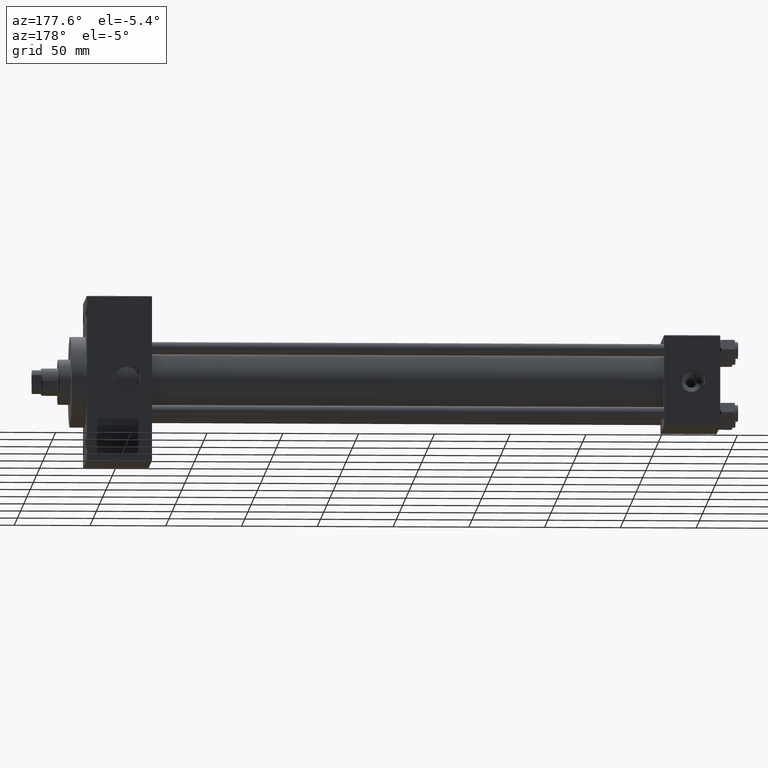
[diagram: clean part render]
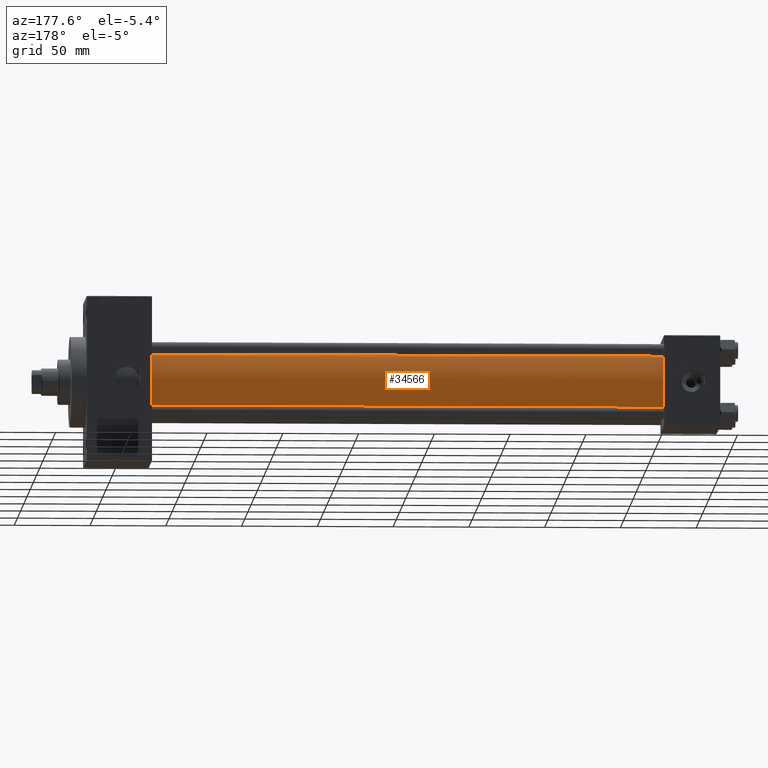
[diagram: same view with one face highlighted and labeled with its STEP entity id]
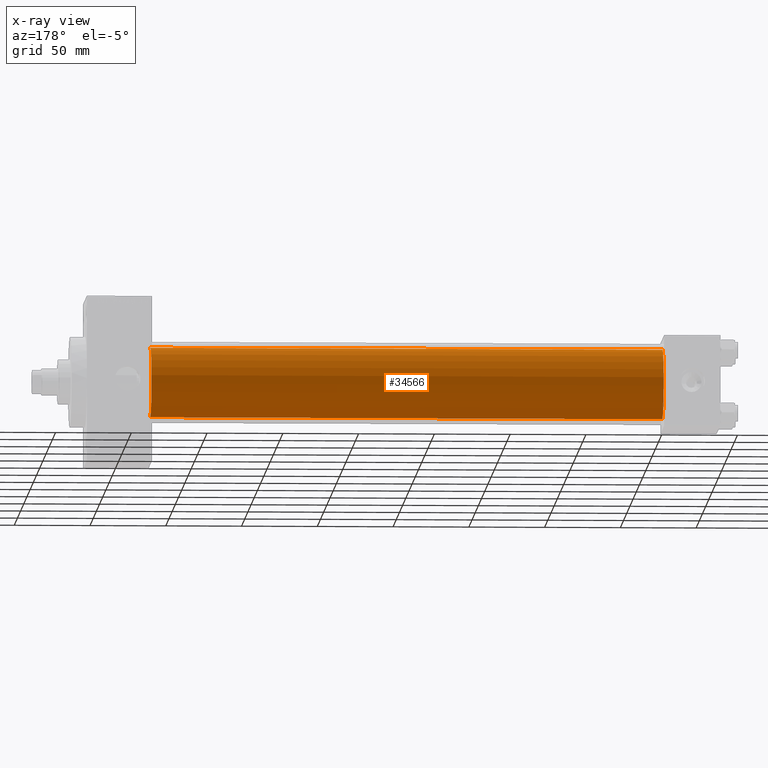
[diagram: x-ray of the same camera — body ghosted, the highlighted face saturated]
A machine part, auxiliary view. The second image highlights one B-rep face of the part: STEP entity #34566.
The next image is the same camera in x-ray: the body ghosted, the highlighted face saturated — about 0% of this face is hidden behind the body in this view.
In plain terms, the highlighted cylindrical surface (edge-blend (fillet) strip) has radius 23 mm, axis along (-1, -0, -0).
Its self-contained STEP definition (entity closure, byte-faithful):
#3951 = CARTESIAN_POINT ( 'NONE',  ( 36.99999999999997868, 2.146024240737016609E-16, -23.00000000000000000 ) ) ;
#5745 = AXIS2_PLACEMENT_3D ( 'NONE', #11711, #34849, #19181 ) ;
#6561 = DIRECTION ( 'NONE',  ( -1.000000000000000000, -0.000000000000000000, -0.000000000000000000 ) ) ;
#7219 = VERTEX_POINT ( 'NONE', #38421 ) ;
#7342 = CYLINDRICAL_SURFACE ( 'NONE', #36896, 23.00000000000000000 ) ;
#9087 = EDGE_CURVE ( 'NONE', #26029, #18213, #45522, .T. ) ;
#9188 = EDGE_CURVE ( 'NONE', #18425, #7219, #14475, .T. ) ;
#10124 = CARTESIAN_POINT ( 'NONE',  ( 375.0000000000000000, 2.146024240737016609E-16, -23.00000000000000000 ) ) ;
#11711 = CARTESIAN_POINT ( 'NONE',  ( 375.0000000000000000, -2.602085213965210642E-15, 0.000000000000000000 ) ) ;
#14475 = CIRCLE ( 'NONE', #26410, 23.00000000000000000 ) ;
#15941 = CARTESIAN_POINT ( 'NONE',  ( 36.99999999999997868, -2.602085213965210642E-15, 0.000000000000000000 ) ) ;
#18213 = VERTEX_POINT ( 'NONE', #32132 ) ;
#18425 = VERTEX_POINT ( 'NONE', #3951 ) ;
#18783 = DIRECTION ( 'NONE',  ( 0.000000000000000000, 0.000000000000000000, 1.000000000000000000 ) ) ;
#19181 = DIRECTION ( 'NONE',  ( 0.000000000000000000, 0.000000000000000000, -1.000000000000000000 ) ) ;
#22529 = CARTESIAN_POINT ( 'NONE',  ( 375.0000000000000000, -2.602085213965210642E-15, 0.000000000000000000 ) ) ;
#25445 = EDGE_CURVE ( 'NONE', #26029, #18425, #25462, .T. ) ;
#25462 = LINE ( 'NONE', #40674, #48627 ) ;
#26029 = VERTEX_POINT ( 'NONE', #10124 ) ;
#26410 = AXIS2_PLACEMENT_3D ( 'NONE', #15941, #27885, #43091 ) ;
#26740 = DIRECTION ( 'NONE',  ( -1.000000000000000000, -0.000000000000000000, -0.000000000000000000 ) ) ;
#26767 = EDGE_LOOP ( 'NONE', ( #31446, #45064, #41077, #39911 ) ) ;
#27885 = DIRECTION ( 'NONE',  ( 1.000000000000000000, -0.000000000000000000, 0.000000000000000000 ) ) ;
#31446 = ORIENTED_EDGE ( 'NONE', *, *, #9087, .F. ) ;
#32132 = CARTESIAN_POINT ( 'NONE',  ( 375.0000000000000000, -2.602085213965210642E-15, 23.00000000000000000 ) ) ;
#33311 = LINE ( 'NONE', #48056, #43774 ) ;
#34566 = ADVANCED_FACE ( 'NONE', ( #34707 ), #7342, .T. ) ;
#34707 = FACE_OUTER_BOUND ( 'NONE', #26767, .T. ) ;
#34849 = DIRECTION ( 'NONE',  ( 1.000000000000000000, 0.000000000000000000, 0.000000000000000000 ) ) ;
#36319 = DIRECTION ( 'NONE',  ( -1.000000000000000000, -0.000000000000000000, -0.000000000000000000 ) ) ;
#36896 = AXIS2_PLACEMENT_3D ( 'NONE', #22529, #26740, #18783 ) ;
#38421 = CARTESIAN_POINT ( 'NONE',  ( 36.99999999999997868, -2.602085213965210642E-15, 23.00000000000000000 ) ) ;
#39911 = ORIENTED_EDGE ( 'NONE', *, *, #46369, .F. ) ;
#40674 = CARTESIAN_POINT ( 'NONE',  ( 375.0000000000000000, 2.146024240737016609E-16, -23.00000000000000000 ) ) ;
#41077 = ORIENTED_EDGE ( 'NONE', *, *, #9188, .T. ) ;
#43091 = DIRECTION ( 'NONE',  ( 0.000000000000000000, 0.000000000000000000, 1.000000000000000000 ) ) ;
#43774 = VECTOR ( 'NONE', #36319, 1000.000000000000000 ) ;
#45064 = ORIENTED_EDGE ( 'NONE', *, *, #25445, .T. ) ;
#45522 = CIRCLE ( 'NONE', #5745, 23.00000000000000000 ) ;
#46369 = EDGE_CURVE ( 'NONE', #18213, #7219, #33311, .T. ) ;
#48056 = CARTESIAN_POINT ( 'NONE',  ( 375.0000000000000000, -2.602085213965210642E-15, 23.00000000000000000 ) ) ;
#48627 = VECTOR ( 'NONE', #6561, 1000.000000000000000 ) ;